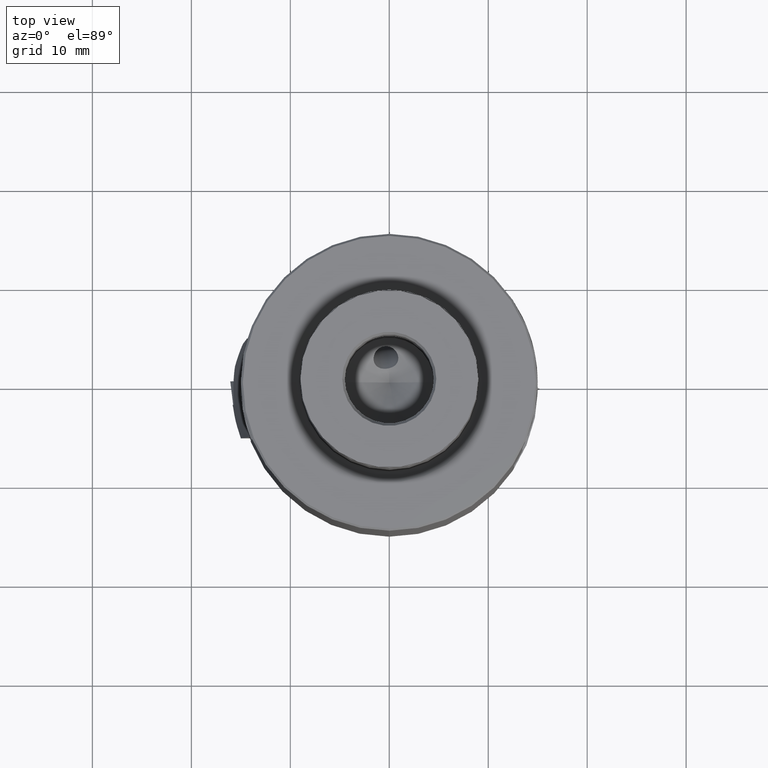
[diagram: clean part render]
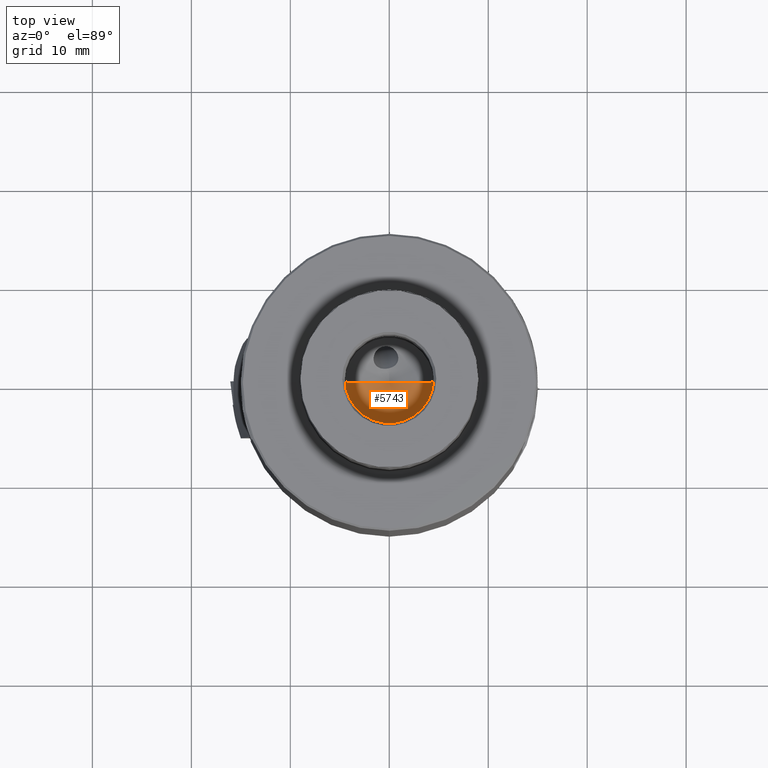
[diagram: same view with one face highlighted and labeled with its STEP entity id]
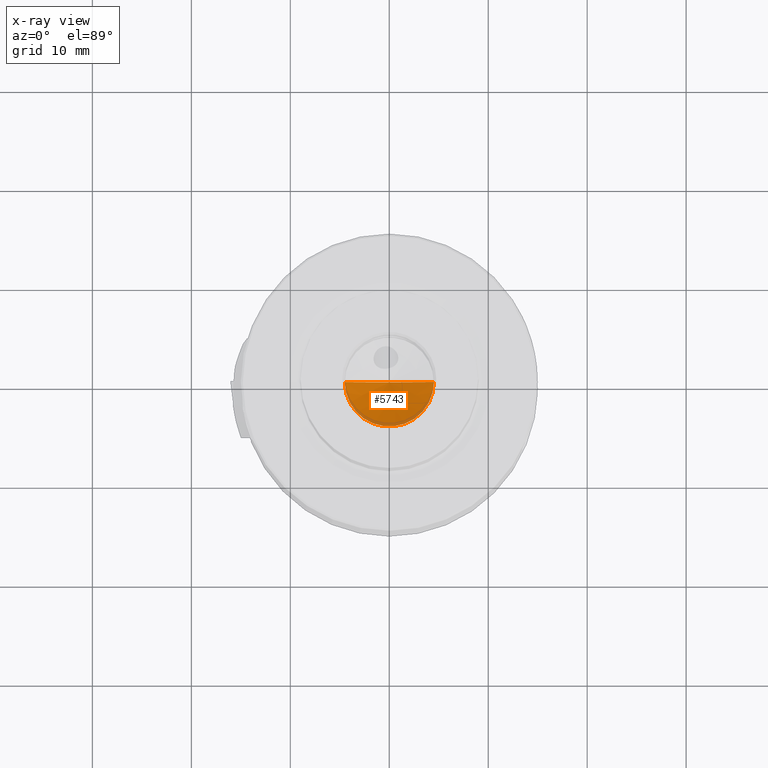
[diagram: x-ray of the same camera — body ghosted, the highlighted face saturated]
A machine part, top view. The second image highlights one B-rep face of the part: STEP entity #5743.
The next image is the same camera in x-ray: the body ghosted, the highlighted face saturated — about 9% of this face is hidden behind the body in this view.
In plain terms, the highlighted conical surface has half-angle 60 deg.
Its self-contained STEP definition (entity closure, byte-faithful):
#2503=VERTEX_POINT('NONE',#6491);
#3035=EDGE_CURVE('NONE',#4353,#3871,#7079,.T.);
#3297=EDGE_CURVE('NONE',#3871,#2503,#7375,.F.);
#3871=VERTEX_POINT('NONE',#8015);
#4353=VERTEX_POINT('NONE',#8549);
#4409=EDGE_CURVE('NONE',#4353,#2503,#8610,.T.);
#5743=ADVANCED_FACE('NONE',(#10062),#10063,.F.);
#6491=CARTESIAN_POINT('',(4.5,-1.0715671514179E-014,0.999999999999975));
#7079=LINE('',#13877,#13878);
#7375=CIRCLE('',#14560,4.5);
#8015=CARTESIAN_POINT('',(-4.5,1.12667625737953E-014,0.999999999999975));
#8549=CARTESIAN_POINT('',(0.0,0.0,-1.59807621135333));
#8610=LINE('',#17759,#17760);
#10062=FACE_OUTER_BOUND('',#22343,.T.);
#10063=CONICAL_SURFACE('',#22344,1732.05080756886,1.04719755119659);
#13877=CARTESIAN_POINT('',(0.0,0.0,-1.59807621135333));
#13878=VECTOR('',#23993,1000.0);
#14560=AXIS2_PLACEMENT_3D('',#24329,#24330,#24331);
#17759=CARTESIAN_POINT('',(0.0,0.0,-1.59807621135333));
#17760=VECTOR('',#25684,1000.0);
#22343=EDGE_LOOP('',(#27102,#27103,#27104));
#22344=AXIS2_PLACEMENT_3D('',#27105,#27106,#27107);
#23993=DIRECTION('',(-0.866025403784436,2.1682894682921E-015,0.500000000000004));
#24329=CARTESIAN_POINT('',(0.0,0.0,0.999999999999975));
#24330=DIRECTION('',(0.0,0.0,-1.0));
#24331=DIRECTION('',(1.0,-2.38126033648422E-015,0.0));
#25684=DIRECTION('',(0.866025403784436,-2.06223194441961E-015,0.500000000000004));
#27102=ORIENTED_EDGE('',*,*,#4409,.F.);
#27103=ORIENTED_EDGE('',*,*,#3035,.T.);
#27104=ORIENTED_EDGE('',*,*,#3297,.T.);
#27105=CARTESIAN_POINT('',(0.0,0.0,998.401923788647));
#27106=DIRECTION('',(-0.0,-0.0,1.0));
#27107=DIRECTION('',(1.0,-2.38126033648423E-015,0.0));